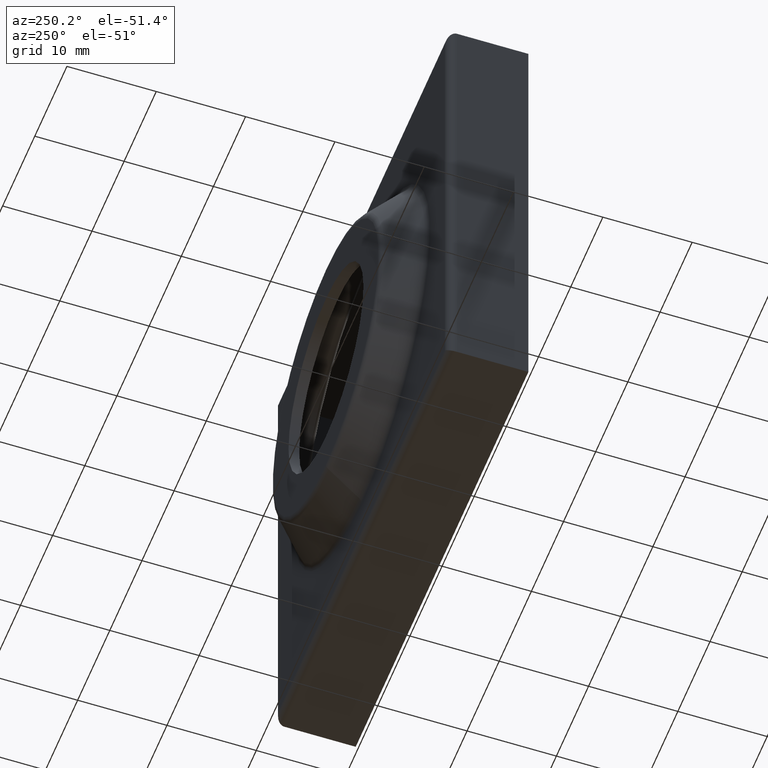
[diagram: clean part render]
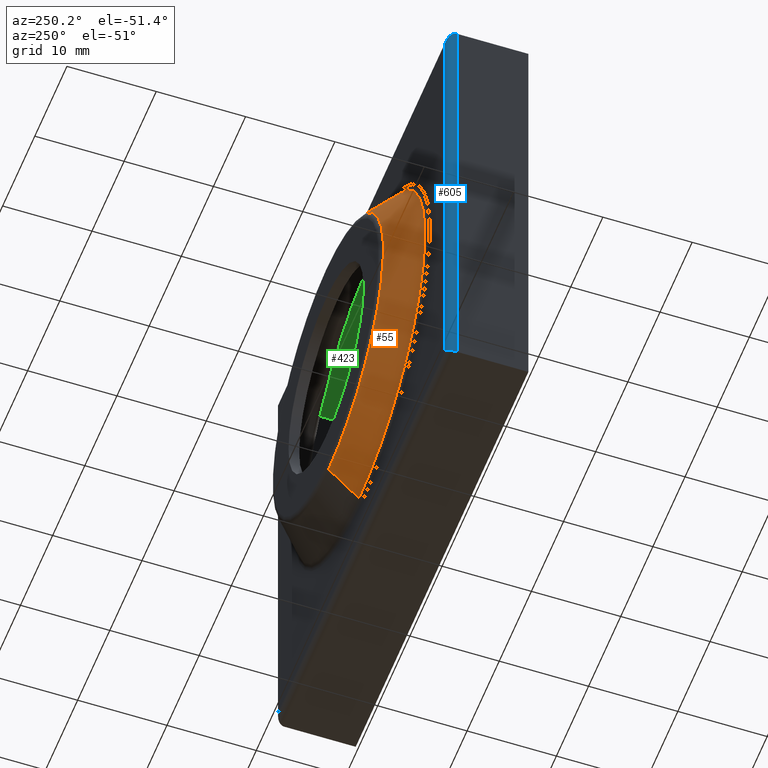
[diagram: same view with three faces highlighted in distinct colors, each labeled with its STEP entity id]
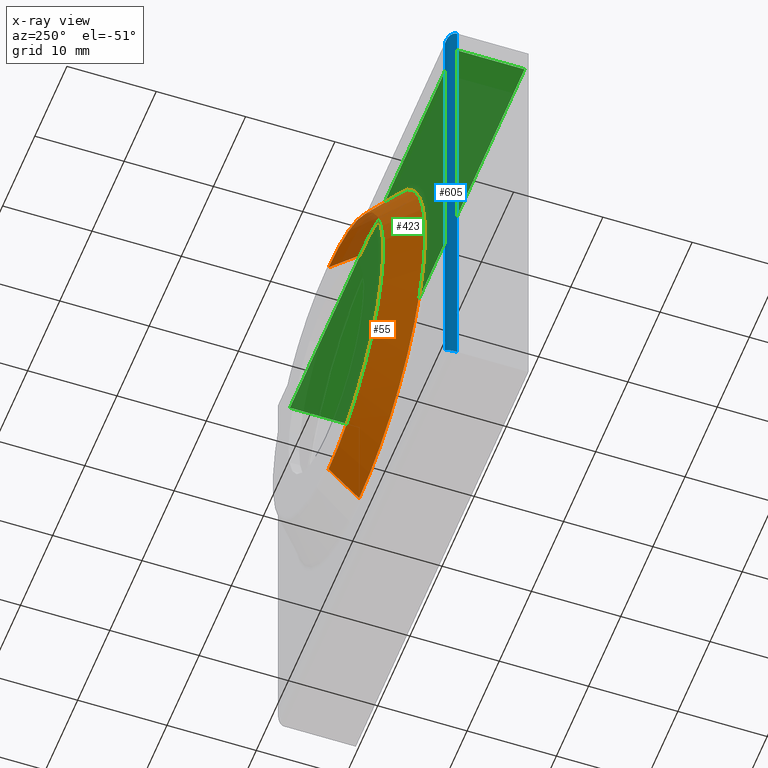
[diagram: x-ray of the same camera — body ghosted, the three highlighted faces saturated]
A machine part, auxiliary view with three faces highlighted in distinct colors.
The next image is the same camera in x-ray (body ghosted, the three faces saturated) — at least one of them is partly hidden behind the body in this view.
Their STEP definitions:

[orange] entity #55 — the highlighted conical surface has half-angle 45 deg.
#30 = AXIS2_PLACEMENT_3D ( 'NONE', #282, #721, #341 ) ;
#42 = VERTEX_POINT ( 'NONE', #105 ) ;
#46 = DIRECTION ( 'NONE',  ( 0.0000000000000000000, 0.0000000000000000000, 1.000000000000000000 ) ) ;
#55 = ADVANCED_FACE ( 'NONE', ( #586 ), #438, .T. ) ;
#56 = VECTOR ( 'NONE', #759, 1000.000000000000000 ) ;
#61 = VERTEX_POINT ( 'NONE', #696 ) ;
#81 = EDGE_CURVE ( 'NONE', #716, #42, #757, .T. ) ;
#96 = AXIS2_PLACEMENT_3D ( 'NONE', #612, #432, #46 ) ;
#105 = CARTESIAN_POINT ( 'NONE',  ( -2.505273033939572200E-015, 9.292893218813450300, -20.45710678118655000 ) ) ;
#190 = LINE ( 'NONE', #476, #345 ) ;
#217 = EDGE_CURVE ( 'NONE', #61, #246, #190, .T. ) ;
#246 = VERTEX_POINT ( 'NONE', #830 ) ;
#274 = CARTESIAN_POINT ( 'NONE',  ( -2.296212748401286400E-015, 12.70710678118655100, -17.04289321881344000 ) ) ;
#282 = CARTESIAN_POINT ( 'NONE',  ( 0.0000000000000000000, 12.70710678118655100, 0.0000000000000000000 ) ) ;
#289 = ORIENTED_EDGE ( 'NONE', *, *, #81, .T. ) ;
#308 = CIRCLE ( 'NONE', #578, 20.45710678118655000 ) ;
#309 = CARTESIAN_POINT ( 'NONE',  ( 0.0000000000000000000, 9.292893218813450300, 0.0000000000000000000 ) ) ;
#325 = ORIENTED_EDGE ( 'NONE', *, *, #593, .T. ) ;
#341 = DIRECTION ( 'NONE',  ( 0.0000000000000000000, 0.0000000000000000000, -1.000000000000000000 ) ) ;
#345 = VECTOR ( 'NONE', #348, 1000.000000000000000 ) ;
#348 = DIRECTION ( 'NONE',  ( 0.0000000000000000000, -0.7071067811865463500, 0.7071067811865487900 ) ) ;
#368 = CIRCLE ( 'NONE', #30, 17.04289321881344000 ) ;
#432 = DIRECTION ( 'NONE',  ( -0.0000000000000000000, -1.000000000000000000, -0.0000000000000000000 ) ) ;
#438 = CONICAL_SURFACE ( 'NONE', #96, 20.75000000000000000, 0.7853981633974500600 ) ;
#439 = CARTESIAN_POINT ( 'NONE',  ( -2.541142108230757900E-015, 9.000000000000000000, -20.75000000000000000 ) ) ;
#476 = CARTESIAN_POINT ( 'NONE',  ( 0.0000000000000000000, 9.000000000000000000, 20.75000000000000000 ) ) ;
#529 = ORIENTED_EDGE ( 'NONE', *, *, #636, .T. ) ;
#554 = ORIENTED_EDGE ( 'NONE', *, *, #217, .F. ) ;
#578 = AXIS2_PLACEMENT_3D ( 'NONE', #309, #753, #817 ) ;
#586 = FACE_OUTER_BOUND ( 'NONE', #639, .T. ) ;
#593 = EDGE_CURVE ( 'NONE', #42, #246, #308, .T. ) ;
#612 = CARTESIAN_POINT ( 'NONE',  ( 0.0000000000000000000, 9.000000000000000000, 0.0000000000000000000 ) ) ;
#636 = EDGE_CURVE ( 'NONE', #61, #716, #368, .T. ) ;
#639 = EDGE_LOOP ( 'NONE', ( #529, #289, #325, #554 ) ) ;
#696 = CARTESIAN_POINT ( 'NONE',  ( 0.0000000000000000000, 12.70710678118655100, 17.04289321881344000 ) ) ;
#716 = VERTEX_POINT ( 'NONE', #274 ) ;
#721 = DIRECTION ( 'NONE',  ( -0.0000000000000000000, -1.000000000000000000, -0.0000000000000000000 ) ) ;
#753 = DIRECTION ( 'NONE',  ( 0.0000000000000000000, 1.000000000000000000, 0.0000000000000000000 ) ) ;
#757 = LINE ( 'NONE', #439, #56 ) ;
#759 = DIRECTION ( 'NONE',  ( -8.659560562354948900E-017, -0.7071067811865463500, -0.7071067811865487900 ) ) ;
#817 = DIRECTION ( 'NONE',  ( 0.0000000000000000000, 0.0000000000000000000, -1.000000000000000000 ) ) ;
#830 = CARTESIAN_POINT ( 'NONE',  ( 0.0000000000000000000, 9.292893218813450300, 20.45710678118655000 ) ) ;

[blue] entity #605 — the highlighted cylindrical surface (edge-blend (fillet) strip) has radius 1 mm, axis along (0, 0, 1).
#40 = EDGE_CURVE ( 'NONE', #351, #280, #647, .T. ) ;
#67 = CARTESIAN_POINT ( 'NONE',  ( -25.85000000000000500, 9.000000000000000000, -25.85000000000000500 ) ) ;
#116 = CYLINDRICAL_SURFACE ( 'NONE', #614, 1.000000000000000900 ) ;
#127 = CARTESIAN_POINT ( 'NONE',  ( -26.85000000000000500, 8.000000000000000000, -26.85000000000000500 ) ) ;
#131 = CARTESIAN_POINT ( 'NONE',  ( -26.43578643762691300, 9.000000000000000000, -26.43578643762691300 ) ) ;
#152 = CARTESIAN_POINT ( 'NONE',  ( -26.85000000000000500, 8.000000000000000000, 26.84999999999999800 ) ) ;
#193 = ORIENTED_EDGE ( 'NONE', *, *, #447, .F. ) ;
#235 = VERTEX_POINT ( 'NONE', #127 ) ;
#236 = CARTESIAN_POINT ( 'NONE',  ( -25.85000000000000500, 9.000000000000000000, 0.0000000000000000000 ) ) ;
#240 = CARTESIAN_POINT ( 'NONE',  ( -26.85000000000000500, 8.585786437626904200, 26.84999999999999800 ) ) ;
#265 = ORIENTED_EDGE ( 'NONE', *, *, #40, .T. ) ;
#275 = VECTOR ( 'NONE', #686, 1000.000000000000000 ) ;
#280 = VERTEX_POINT ( 'NONE', #449 ) ;
#304 = DIRECTION ( 'NONE',  ( 0.0000000000000000000, 0.0000000000000000000, 1.000000000000000000 ) ) ;
#326 = VERTEX_POINT ( 'NONE', #462 ) ;
#328 = LINE ( 'NONE', #152, #440 ) ;
#351 = VERTEX_POINT ( 'NONE', #646 ) ;
#371 = EDGE_CURVE ( 'NONE', #235, #326, #388, .T. ) ;
#388 =( BOUNDED_CURVE ( )  B_SPLINE_CURVE ( 3, ( #709, #641, #131, #67 ),
 .UNSPECIFIED., .F., .F. ) 
 B_SPLINE_CURVE_WITH_KNOTS ( ( 4, 4 ),
 ( 3.141592653589793100, 4.712388980384689700 ),
 .UNSPECIFIED. ) 
 CURVE ( )  GEOMETRIC_REPRESENTATION_ITEM ( )  RATIONAL_B_SPLINE_CURVE ( ( 1.000000000000000000, 0.8047378541243649400, 0.8047378541243649400, 1.000000000000000000 ) ) 
 REPRESENTATION_ITEM ( '' )  );
#440 = VECTOR ( 'NONE', #657, 1000.000000000000000 ) ;
#447 = EDGE_CURVE ( 'NONE', #326, #280, #518, .T. ) ;
#449 = CARTESIAN_POINT ( 'NONE',  ( -25.85000000000000500, 9.000000000000000000, 25.84999999999999800 ) ) ;
#462 = CARTESIAN_POINT ( 'NONE',  ( -25.85000000000000500, 9.000000000000000000, -25.85000000000000500 ) ) ;
#496 = CARTESIAN_POINT ( 'NONE',  ( -25.85000000000000500, 9.000000000000000000, 25.84999999999999800 ) ) ;
#506 = CARTESIAN_POINT ( 'NONE',  ( -25.85000000000000500, 8.000000000000000000, 0.0000000000000000000 ) ) ;
#518 = LINE ( 'NONE', #236, #275 ) ;
#530 = ORIENTED_EDGE ( 'NONE', *, *, #371, .F. ) ;
#551 = CARTESIAN_POINT ( 'NONE',  ( -26.85000000000000500, 8.000000000000000000, 26.84999999999999800 ) ) ;
#582 = FACE_OUTER_BOUND ( 'NONE', #712, .T. ) ;
#605 = ADVANCED_FACE ( 'NONE', ( #582 ), #116, .T. ) ;
#614 = AXIS2_PLACEMENT_3D ( 'NONE', #506, #304, #750 ) ;
#641 = CARTESIAN_POINT ( 'NONE',  ( -26.85000000000000500, 8.585786437626904200, -26.85000000000000500 ) ) ;
#646 = CARTESIAN_POINT ( 'NONE',  ( -26.85000000000000500, 8.000000000000000000, 26.84999999999999800 ) ) ;
#647 =( BOUNDED_CURVE ( )  B_SPLINE_CURVE ( 3, ( #551, #240, #748, #496 ),
 .UNSPECIFIED., .F., .F. ) 
 B_SPLINE_CURVE_WITH_KNOTS ( ( 4, 4 ),
 ( 3.141592653589793100, 4.712388980384689700 ),
 .UNSPECIFIED. ) 
 CURVE ( )  GEOMETRIC_REPRESENTATION_ITEM ( )  RATIONAL_B_SPLINE_CURVE ( ( 1.000000000000000000, 0.8047378541243649400, 0.8047378541243649400, 1.000000000000000000 ) ) 
 REPRESENTATION_ITEM ( '' )  );
#657 = DIRECTION ( 'NONE',  ( -0.0000000000000000000, -0.0000000000000000000, -1.000000000000000000 ) ) ;
#667 = ORIENTED_EDGE ( 'NONE', *, *, #786, .F. ) ;
#686 = DIRECTION ( 'NONE',  ( 0.0000000000000000000, 0.0000000000000000000, 1.000000000000000000 ) ) ;
#709 = CARTESIAN_POINT ( 'NONE',  ( -26.85000000000000500, 8.000000000000000000, -26.85000000000000500 ) ) ;
#712 = EDGE_LOOP ( 'NONE', ( #265, #193, #530, #667 ) ) ;
#748 = CARTESIAN_POINT ( 'NONE',  ( -26.43578643762691300, 9.000000000000000000, 26.43578643762690200 ) ) ;
#750 = DIRECTION ( 'NONE',  ( 1.000000000000000000, 0.0000000000000000000, 0.0000000000000000000 ) ) ;
#786 = EDGE_CURVE ( 'NONE', #351, #235, #328, .T. ) ;

[green] entity #423 — the highlighted planar face has unit normal (0, 0, -1).
#3 = ORIENTED_EDGE ( 'NONE', *, *, #544, .F. ) ;
#6 = DIRECTION ( 'NONE',  ( -1.000000000000000000, 0.0000000000000000000, -0.0000000000000000000 ) ) ;
#9 = DIRECTION ( 'NONE',  ( 0.0000000000000000000, 0.0000000000000000000, -1.000000000000000000 ) ) ;
#11 = CARTESIAN_POINT ( 'NONE',  ( 25.64999999999999900, 7.799999999999999800, 25.64999999999999900 ) ) ;
#27 = VERTEX_POINT ( 'NONE', #610 ) ;
#86 = ORIENTED_EDGE ( 'NONE', *, *, #779, .F. ) ;
#156 = CARTESIAN_POINT ( 'NONE',  ( -26.85000000000000500, 7.799999999999999800, 25.64999999999999900 ) ) ;
#189 = CARTESIAN_POINT ( 'NONE',  ( 25.64999999999999900, 9.000000000000000000, 25.64999999999999900 ) ) ;
#205 = DIRECTION ( 'NONE',  ( 0.0000000000000000000, -1.000000000000000000, 0.0000000000000000000 ) ) ;
#223 = ORIENTED_EDGE ( 'NONE', *, *, #279, .T. ) ;
#237 = VECTOR ( 'NONE', #498, 1000.000000000000000 ) ;
#271 = LINE ( 'NONE', #189, #819 ) ;
#279 = EDGE_CURVE ( 'NONE', #790, #549, #271, .T. ) ;
#306 = VECTOR ( 'NONE', #205, 1000.000000000000000 ) ;
#319 = LINE ( 'NONE', #427, #237 ) ;
#336 = DIRECTION ( 'NONE',  ( -1.000000000000000000, 0.0000000000000000000, 0.0000000000000000000 ) ) ;
#339 = EDGE_CURVE ( 'NONE', #626, #27, #609, .T. ) ;
#382 = EDGE_LOOP ( 'NONE', ( #223, #3, #499, #86 ) ) ;
#393 = LINE ( 'NONE', #156, #733 ) ;
#395 = CARTESIAN_POINT ( 'NONE',  ( -26.85000000000000500, 9.000000000000000000, 25.64999999999999900 ) ) ;
#423 = ADVANCED_FACE ( 'NONE', ( #559 ), #780, .T. ) ;
#427 = CARTESIAN_POINT ( 'NONE',  ( 0.0000000000000000000, -0.0000000000000000000, 25.64999999999999900 ) ) ;
#453 = AXIS2_PLACEMENT_3D ( 'NONE', #395, #9, #6 ) ;
#498 = DIRECTION ( 'NONE',  ( 1.000000000000000000, 0.0000000000000000000, 0.0000000000000000000 ) ) ;
#499 = ORIENTED_EDGE ( 'NONE', *, *, #339, .F. ) ;
#514 = DIRECTION ( 'NONE',  ( 0.0000000000000000000, -1.000000000000000000, 0.0000000000000000000 ) ) ;
#543 = CARTESIAN_POINT ( 'NONE',  ( -25.65000000000000600, 7.799999999999999800, 25.64999999999999900 ) ) ;
#544 = EDGE_CURVE ( 'NONE', #27, #549, #319, .T. ) ;
#549 = VERTEX_POINT ( 'NONE', #810 ) ;
#559 = FACE_OUTER_BOUND ( 'NONE', #382, .T. ) ;
#609 = LINE ( 'NONE', #705, #306 ) ;
#610 = CARTESIAN_POINT ( 'NONE',  ( -25.65000000000000600, 0.0000000000000000000, 25.64999999999999900 ) ) ;
#626 = VERTEX_POINT ( 'NONE', #543 ) ;
#705 = CARTESIAN_POINT ( 'NONE',  ( -25.65000000000000600, 9.000000000000000000, 25.64999999999999900 ) ) ;
#733 = VECTOR ( 'NONE', #336, 1000.000000000000000 ) ;
#779 = EDGE_CURVE ( 'NONE', #790, #626, #393, .T. ) ;
#780 = PLANE ( 'NONE',  #453 ) ;
#790 = VERTEX_POINT ( 'NONE', #11 ) ;
#810 = CARTESIAN_POINT ( 'NONE',  ( 25.64999999999999900, 0.0000000000000000000, 25.64999999999999900 ) ) ;
#819 = VECTOR ( 'NONE', #514, 1000.000000000000000 ) ;